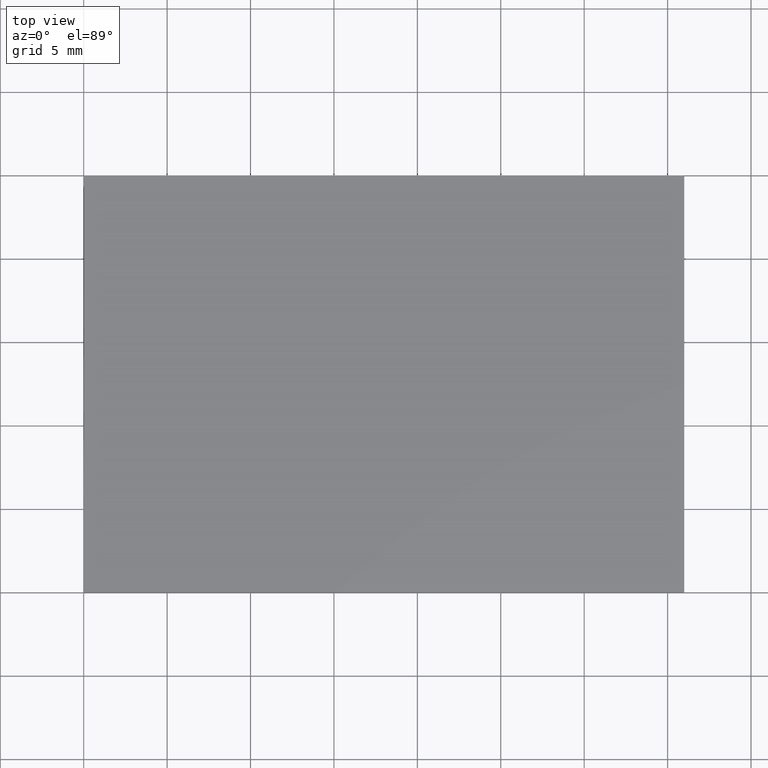
[diagram: clean part render]
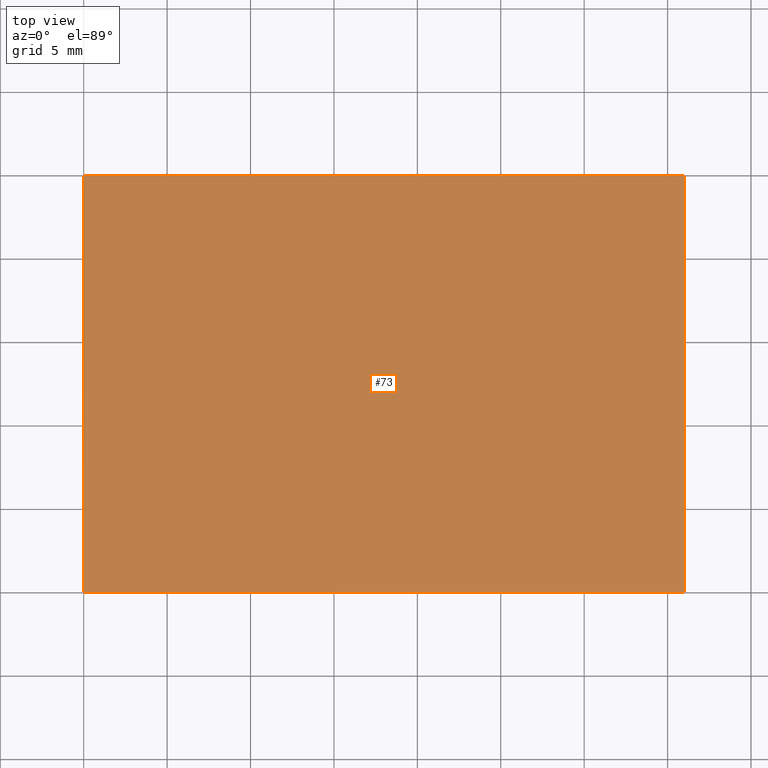
[diagram: same view with one face highlighted and labeled with its STEP entity id]
A machine part, top view. The second image highlights one B-rep face of the part: STEP entity #73.
In plain terms, the highlighted planar face has unit normal (0, 0, -1).
Its self-contained STEP definition (entity closure, byte-faithful):
#6 = EDGE_CURVE ( 'NONE', #176, #66, #198, .T. ) ;
#7 = CARTESIAN_POINT ( 'NONE',  ( 0.000000000000000000, 0.000000000000000000, 1.100000000000000089 ) ) ;
#15 = LINE ( 'NONE', #192, #52 ) ;
#19 = LINE ( 'NONE', #7, #61 ) ;
#22 = DIRECTION ( 'NONE',  ( -1.000000000000000000, -0.000000000000000000, -0.000000000000000000 ) ) ;
#29 = DIRECTION ( 'NONE',  ( -1.000000000000000000, 0.000000000000000000, -0.000000000000000000 ) ) ;
#32 = VECTOR ( 'NONE', #115, 1000.000000000000000 ) ;
#34 = DIRECTION ( 'NONE',  ( 0.000000000000000000, 1.000000000000000000, 0.000000000000000000 ) ) ;
#41 = EDGE_CURVE ( 'NONE', #66, #182, #19, .T. ) ;
#45 = CARTESIAN_POINT ( 'NONE',  ( 0.000000000000000000, 0.000000000000000000, 1.100000000000000089 ) ) ;
#47 = DIRECTION ( 'NONE',  ( 0.000000000000000000, 0.000000000000000000, -1.000000000000000000 ) ) ;
#52 = VECTOR ( 'NONE', #34, 1000.000000000000000 ) ;
#58 = EDGE_CURVE ( 'NONE', #128, #176, #72, .T. ) ;
#61 = VECTOR ( 'NONE', #196, 1000.000000000000000 ) ;
#66 = VERTEX_POINT ( 'NONE', #134 ) ;
#68 = ORIENTED_EDGE ( 'NONE', *, *, #41, .T. ) ;
#72 = LINE ( 'NONE', #167, #122 ) ;
#73 = ADVANCED_FACE ( 'NONE', ( #152 ), #200, .F. ) ;
#79 = CARTESIAN_POINT ( 'NONE',  ( 0.000000000000000000, 0.000000000000000000, 1.100000000000000089 ) ) ;
#85 = EDGE_CURVE ( 'NONE', #182, #128, #15, .T. ) ;
#94 = ORIENTED_EDGE ( 'NONE', *, *, #6, .T. ) ;
#100 = EDGE_LOOP ( 'NONE', ( #94, #68, #163, #183 ) ) ;
#115 = DIRECTION ( 'NONE',  ( -0.000000000000000000, -1.000000000000000000, -0.000000000000000000 ) ) ;
#122 = VECTOR ( 'NONE', #22, 1000.000000000000000 ) ;
#128 = VERTEX_POINT ( 'NONE', #169 ) ;
#134 = CARTESIAN_POINT ( 'NONE',  ( 0.000000000000000000, 0.000000000000000000, 1.100000000000000089 ) ) ;
#135 = CARTESIAN_POINT ( 'NONE',  ( 36.00000000000000000, 0.000000000000000000, 1.100000000000000089 ) ) ;
#152 = FACE_OUTER_BOUND ( 'NONE', #100, .T. ) ;
#163 = ORIENTED_EDGE ( 'NONE', *, *, #85, .T. ) ;
#167 = CARTESIAN_POINT ( 'NONE',  ( 0.000000000000000000, 25.00000000000000000, 1.100000000000000089 ) ) ;
#169 = CARTESIAN_POINT ( 'NONE',  ( 36.00000000000000000, 25.00000000000000000, 1.100000000000000089 ) ) ;
#171 = CARTESIAN_POINT ( 'NONE',  ( 0.000000000000000000, 25.00000000000000000, 1.100000000000000089 ) ) ;
#176 = VERTEX_POINT ( 'NONE', #171 ) ;
#178 = AXIS2_PLACEMENT_3D ( 'NONE', #45, #47, #29 ) ;
#182 = VERTEX_POINT ( 'NONE', #135 ) ;
#183 = ORIENTED_EDGE ( 'NONE', *, *, #58, .T. ) ;
#192 = CARTESIAN_POINT ( 'NONE',  ( 36.00000000000000000, 0.000000000000000000, 1.100000000000000089 ) ) ;
#196 = DIRECTION ( 'NONE',  ( 1.000000000000000000, 0.000000000000000000, 0.000000000000000000 ) ) ;
#198 = LINE ( 'NONE', #79, #32 ) ;
#200 = PLANE ( 'NONE',  #178 ) ;